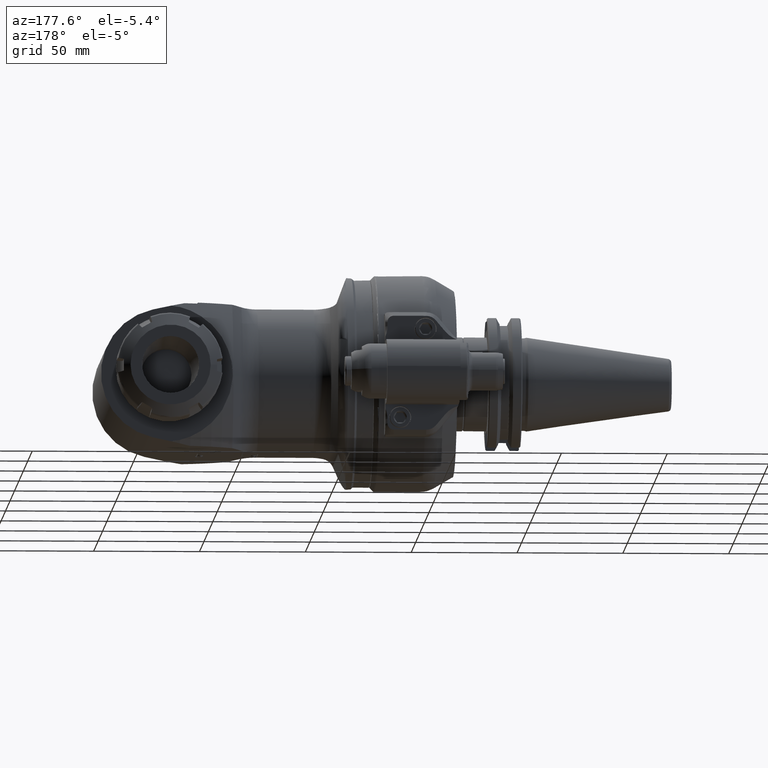
[diagram: clean part render]
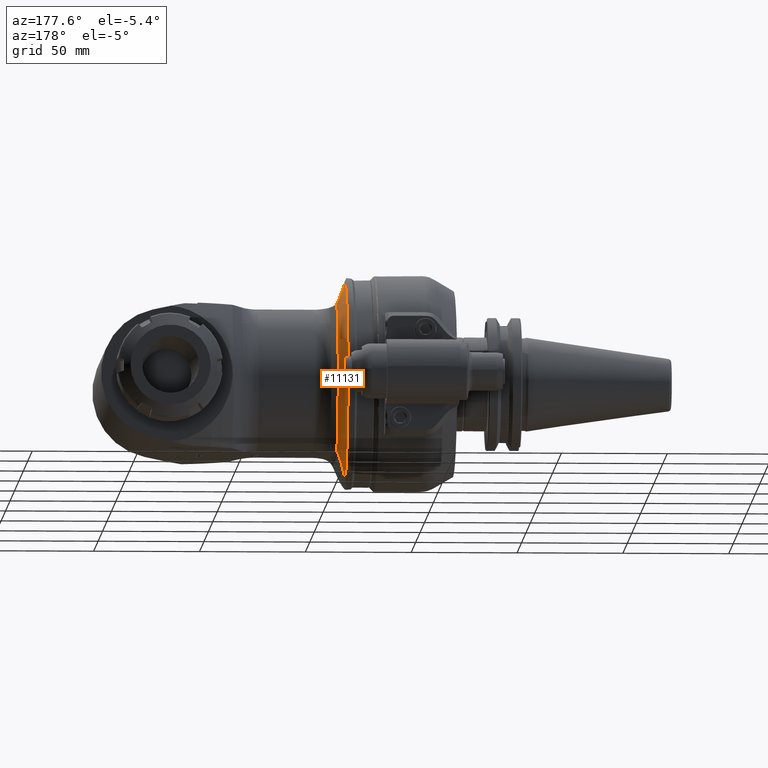
[diagram: same view with one face highlighted and labeled with its STEP entity id]
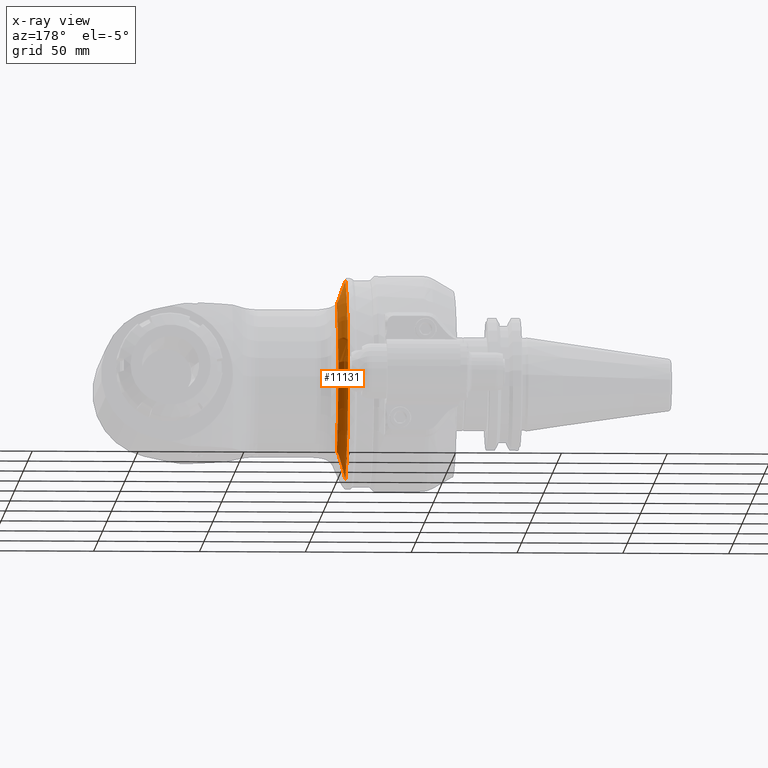
[diagram: x-ray of the same camera — body ghosted, the highlighted face saturated]
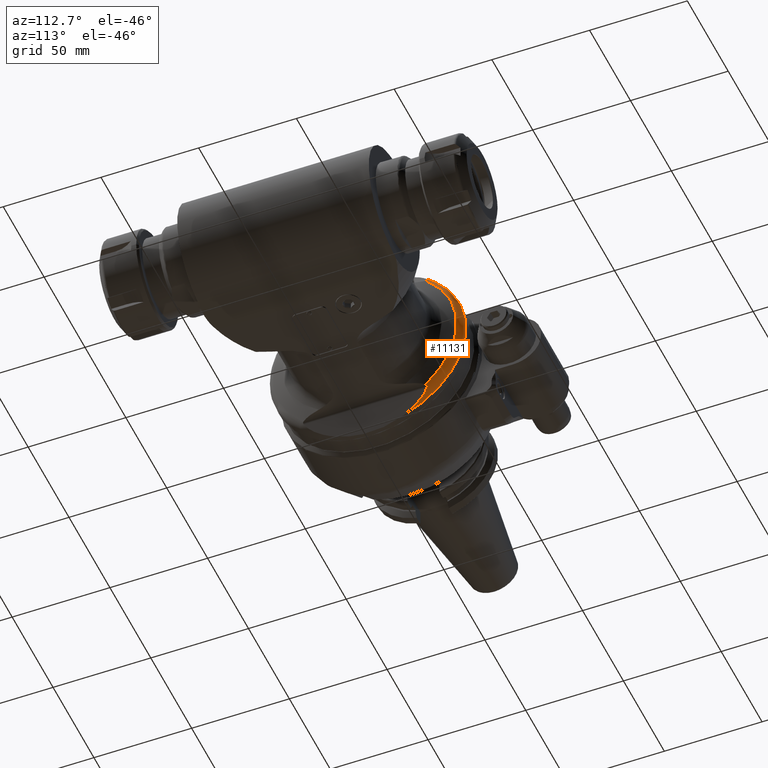
[diagram: same view with one face highlighted and labeled with its STEP entity id]
A machine part, auxiliary view. The second image highlights one B-rep face of the part: STEP entity #11131.
The next image is the same camera in x-ray: the body ghosted, the highlighted face saturated — about 0% of this face is hidden behind the body in this view.
A second angle (auxiliary view) of the same face is appended — the face is thin or edge-on in the first view.
In plain terms, the highlighted toroidal blend (fillet) surface has major radius 45 mm and minor (blend) radius 5 mm.
Its self-contained STEP definition (entity closure, byte-faithful):
#124=B_SPLINE_CURVE_WITH_KNOTS('',3,(#20615,#20616,#20617,#20618,#20619,
#20620,#20621,#20622,#20623,#20624,#20625,#20626,#20627,#20628,#20629,#20630,
#20631,#20632,#20633),.UNSPECIFIED.,.F.,.F.,(4,1,1,1,1,1,1,1,1,1,1,1,1,
1,1,1,4),(1.80983886201859E-8,0.0625,0.125,0.1875,0.25,0.3125,0.375,0.4375,
0.5,0.5625,0.625,0.6875,0.75,0.8125,0.875,0.9375,1.),.UNSPECIFIED.);
#125=B_SPLINE_CURVE_WITH_KNOTS('',3,(#20637,#20638,#20639,#20640,#20641,
#20642,#20643,#20644,#20645,#20646,#20647,#20648,#20649,#20650,#20651,#20652,
#20653,#20654,#20655),.UNSPECIFIED.,.F.,.F.,(4,1,1,1,1,1,1,1,1,1,1,1,1,
1,1,1,4),(0.,0.0625,0.125,0.1875,0.25,0.3125,0.375,0.4375,0.5,0.5625,0.625,
0.6875,0.75,0.8125,0.875,0.9375,1.),.UNSPECIFIED.);
#126=B_SPLINE_CURVE_WITH_KNOTS('',3,(#20656,#20657,#20658,#20659,#20660,
#20661,#20662,#20663,#20664,#20665,#20666,#20667,#20668,#20669),
 .UNSPECIFIED.,.F.,.F.,(4,2,2,2,2,2,4),(8.52445448942661,8.63978623946649,
8.9704434475925,9.30110065571852,9.67241647902402,10.0437323023295,10.2382390719191),
 .UNSPECIFIED.);
#127=B_SPLINE_CURVE_WITH_KNOTS('',3,(#20670,#20671,#20672,#20673,#20674,
#20675,#20676,#20677,#20678,#20679,#20680,#20681,#20682,#20683),
 .UNSPECIFIED.,.F.,.F.,(4,2,2,2,2,2,4),(3.46326501541121,3.65777178500081,
4.02908760830632,4.40040343161182,4.73106063973784,5.06171784786385,5.17704959790373),
 .UNSPECIFIED.);
#2143=TOROIDAL_SURFACE('',#12156,45.,5.);
#2566=FACE_OUTER_BOUND('',#3279,.T.);
#3279=EDGE_LOOP('',(#8681,#8682,#8683,#8684,#8685,#8686));
#3999=CIRCLE('',#12153,50.);
#4001=CIRCLE('',#12157,47.1130913087);
#4810=VERTEX_POINT('',#20605);
#4811=VERTEX_POINT('',#20607);
#4813=VERTEX_POINT('',#20613);
#4814=VERTEX_POINT('',#20614);
#4815=VERTEX_POINT('',#20634);
#4816=VERTEX_POINT('',#20636);
#6200=EDGE_CURVE('',#4811,#4810,#3999,.T.);
#6203=EDGE_CURVE('',#4813,#4814,#124,.T.);
#6204=EDGE_CURVE('',#4813,#4815,#4001,.T.);
#6205=EDGE_CURVE('',#4816,#4815,#125,.T.);
#6206=EDGE_CURVE('',#4811,#4816,#126,.T.);
#6207=EDGE_CURVE('',#4814,#4810,#127,.T.);
#8681=ORIENTED_EDGE('',*,*,#6203,.F.);
#8682=ORIENTED_EDGE('',*,*,#6204,.T.);
#8683=ORIENTED_EDGE('',*,*,#6205,.F.);
#8684=ORIENTED_EDGE('',*,*,#6206,.F.);
#8685=ORIENTED_EDGE('',*,*,#6200,.T.);
#8686=ORIENTED_EDGE('',*,*,#6207,.F.);
#11131=ADVANCED_FACE('',(#2566),#2143,.T.);
#12153=AXIS2_PLACEMENT_3D('',#20608,#14488,#14489);
#12156=AXIS2_PLACEMENT_3D('',#20612,#14494,#14495);
#12157=AXIS2_PLACEMENT_3D('',#20635,#14496,#14497);
#14488=DIRECTION('center_axis',(1.,0.,0.));
#14489=DIRECTION('ref_axis',(0.,0.348098553492607,-0.937457944153419));
#14494=DIRECTION('center_axis',(-1.,0.,0.));
#14495=DIRECTION('ref_axis',(0.,1.,0.));
#14496=DIRECTION('center_axis',(-1.,0.,0.));
#14497=DIRECTION('ref_axis',(0.,0.662186255189877,0.749339284595174));
#20605=CARTESIAN_POINT('',(192.3777456357,17.40492767463,46.87289720767));
#20607=CARTESIAN_POINT('',(192.3777456357,17.40492767463,-46.87289720767));
#20608=CARTESIAN_POINT('Origin',(192.3777456357,0.,0.));
#20612=CARTESIAN_POINT('Origin',(192.3777456357,0.,0.));
#20613=CARTESIAN_POINT('',(196.909284571735,31.1976415122301,35.3036901268535));
#20614=CARTESIAN_POINT('',(196.1051567178,31.53007086037,36.6319194267));
#20615=CARTESIAN_POINT('Ctrl Pts',(196.909284571804,31.1976415124878,35.3036901264465));
#20616=CARTESIAN_POINT('Ctrl Pts',(196.890180202762,31.2358214325098,35.3246248801562));
#20617=CARTESIAN_POINT('Ctrl Pts',(196.852060915996,31.3065796457363,35.367295167608));
#20618=CARTESIAN_POINT('Ctrl Pts',(196.7960786953,31.396569719,35.43274995394));
#20619=CARTESIAN_POINT('Ctrl Pts',(196.741778639,31.47185344071,35.49907782654));
#20620=CARTESIAN_POINT('Ctrl Pts',(196.6893373316,31.53411725322,35.56599232592));
#20621=CARTESIAN_POINT('Ctrl Pts',(196.6381391997,31.58545562457,35.63426109237));
#20622=CARTESIAN_POINT('Ctrl Pts',(196.5882606447,31.62675555961,35.70381065519));
#20623=CARTESIAN_POINT('Ctrl Pts',(196.5390141222,31.65921965156,35.77569488803));
#20624=CARTESIAN_POINT('Ctrl Pts',(196.490420476,31.68311494613,35.85008347048));
#20625=CARTESIAN_POINT('Ctrl Pts',(196.4422650105,31.69872115817,35.92753669002));
#20626=CARTESIAN_POINT('Ctrl Pts',(196.394135545,31.70599644197,36.00911128594));
#20627=CARTESIAN_POINT('Ctrl Pts',(196.346232377,31.70458168989,36.09495148288));
#20628=CARTESIAN_POINT('Ctrl Pts',(196.297999385,31.6938223523,36.1867355465));
#20629=CARTESIAN_POINT('Ctrl Pts',(196.2497093215,31.6727916112,36.28486968976));
#20630=CARTESIAN_POINT('Ctrl Pts',(196.2010912852,31.64001833014,36.39111951129));
#20631=CARTESIAN_POINT('Ctrl Pts',(196.1525643262,31.59385672044,36.50623454447));
#20632=CARTESIAN_POINT('Ctrl Pts',(196.1207499231,31.55311060012,36.58907744708));
#20633=CARTESIAN_POINT('Ctrl Pts',(196.1051567178,31.53007086037,36.6319194267));
#20634=CARTESIAN_POINT('',(196.909284571876,31.1976415119999,-35.3036901266306));
#20635=CARTESIAN_POINT('Origin',(196.9092845709,0.,0.));
#20636=CARTESIAN_POINT('',(196.1051567178,31.53007086037,-36.6319194267));
#20637=CARTESIAN_POINT('Ctrl Pts',(196.1051567178,31.53007086037,-36.6319194267));
#20638=CARTESIAN_POINT('Ctrl Pts',(196.1207322184,31.5530844405,-36.58912609043));
#20639=CARTESIAN_POINT('Ctrl Pts',(196.1525179257,31.59380313806,-36.50635116631));
#20640=CARTESIAN_POINT('Ctrl Pts',(196.2010461541,31.6399841796,-36.3912205775));
#20641=CARTESIAN_POINT('Ctrl Pts',(196.24969538,31.67278604771,-36.28489768823));
#20642=CARTESIAN_POINT('Ctrl Pts',(196.2979977423,31.69382183875,-36.18673874026));
#20643=CARTESIAN_POINT('Ctrl Pts',(196.3462391839,31.70458479053,-36.09493767805));
#20644=CARTESIAN_POINT('Ctrl Pts',(196.3941755989,31.70599284821,-36.00904204446));
#20645=CARTESIAN_POINT('Ctrl Pts',(196.4422753446,31.69872163974,-35.92751825591));
#20646=CARTESIAN_POINT('Ctrl Pts',(196.4905281215,31.68307165011,-35.8499142507));
#20647=CARTESIAN_POINT('Ctrl Pts',(196.5390436814,31.65920022605,-35.77565183255));
#20648=CARTESIAN_POINT('Ctrl Pts',(196.5883271992,31.62670809751,-35.70371490193));
#20649=CARTESIAN_POINT('Ctrl Pts',(196.6381937193,31.58540412965,-35.63418738414));
#20650=CARTESIAN_POINT('Ctrl Pts',(196.6893778029,31.53407276494,-35.56593961935));
#20651=CARTESIAN_POINT('Ctrl Pts',(196.7418086386,31.47181272867,-35.49904098156));
#20652=CARTESIAN_POINT('Ctrl Pts',(196.7960602616,31.39659404269,-35.4327727353));
#20653=CARTESIAN_POINT('Ctrl Pts',(196.8520244863,31.30664320087,-35.36733668116));
#20654=CARTESIAN_POINT('Ctrl Pts',(196.8901647647,31.23585228532,-35.32464179728));
#20655=CARTESIAN_POINT('Ctrl Pts',(196.9092845726,31.19764151084,-35.30369012556));
#20656=CARTESIAN_POINT('Ctrl Pts',(192.377745635738,17.4049276746258,-46.8728972076726));
#20657=CARTESIAN_POINT('Ctrl Pts',(192.427101632847,17.7701216774767,-46.737292720101));
#20658=CARTESIAN_POINT('Ctrl Pts',(192.477751510717,18.1296968241042,-46.5981333243543));
#20659=CARTESIAN_POINT('Ctrl Pts',(192.678012482352,19.4961631036191,-46.0479208267895));
#20660=CARTESIAN_POINT('Ctrl Pts',(192.856173361094,20.590220041838,-45.5584278354153));
#20661=CARTESIAN_POINT('Ctrl Pts',(193.250349658616,22.7176844987486,-44.4754373586897));
#20662=CARTESIAN_POINT('Ctrl Pts',(193.46656037435,23.7507826391231,-43.8814032993668));
#20663=CARTESIAN_POINT('Ctrl Pts',(193.918058123146,25.6827605825767,-42.640923429617));
#20664=CARTESIAN_POINT('Ctrl Pts',(194.201366183599,26.7614724252077,-41.8625409307726));
#20665=CARTESIAN_POINT('Ctrl Pts',(194.823715761596,28.762998259754,-40.1526495182193));
#20666=CARTESIAN_POINT('Ctrl Pts',(195.162728215626,29.6858895034814,-39.221220455856));
#20667=CARTESIAN_POINT('Ctrl Pts',(195.680661636612,30.810196626349,-37.7982100769172));
#20668=CARTESIAN_POINT('Ctrl Pts',(195.891535296275,31.2144345402253,-37.2188394586368));
#20669=CARTESIAN_POINT('Ctrl Pts',(196.105156717805,31.5300708603129,-36.631919426671));
#20670=CARTESIAN_POINT('Ctrl Pts',(196.105156717805,31.5300708603129,36.631919426671));
#20671=CARTESIAN_POINT('Ctrl Pts',(195.891535296275,31.2144345402253,37.2188394586368));
#20672=CARTESIAN_POINT('Ctrl Pts',(195.680661636612,30.810196626349,37.7982100769171));
#20673=CARTESIAN_POINT('Ctrl Pts',(195.162728215626,29.6858895034814,39.221220455856));
#20674=CARTESIAN_POINT('Ctrl Pts',(194.823715761596,28.762998259754,40.1526495182193));
#20675=CARTESIAN_POINT('Ctrl Pts',(194.201366183599,26.7614724252077,41.8625409307726));
#20676=CARTESIAN_POINT('Ctrl Pts',(193.918058123146,25.6827605825767,42.640923429617));
#20677=CARTESIAN_POINT('Ctrl Pts',(193.46656037435,23.7507826391231,43.8814032993668));
#20678=CARTESIAN_POINT('Ctrl Pts',(193.250349658616,22.7176844987486,44.4754373586897));
#20679=CARTESIAN_POINT('Ctrl Pts',(192.856173361094,20.590220041838,45.5584278354153));
#20680=CARTESIAN_POINT('Ctrl Pts',(192.678012482352,19.4961631036191,46.0479208267895));
#20681=CARTESIAN_POINT('Ctrl Pts',(192.477751510717,18.1296968241042,46.5981333243543));
#20682=CARTESIAN_POINT('Ctrl Pts',(192.427101632847,17.7701216774767,46.737292720101));
#20683=CARTESIAN_POINT('Ctrl Pts',(192.377745635738,17.4049276746258,46.8728972076726));